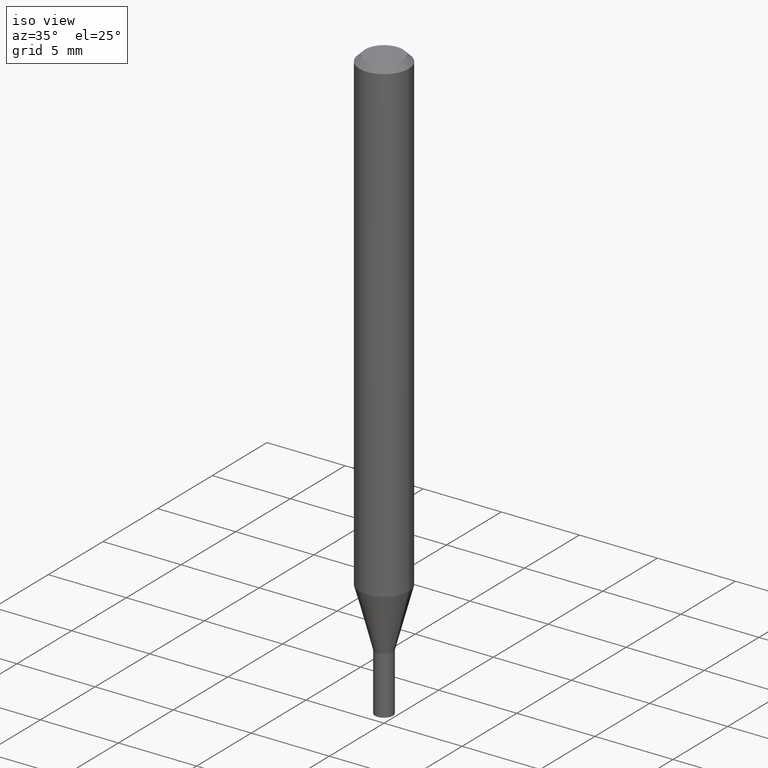
[diagram: clean part render]
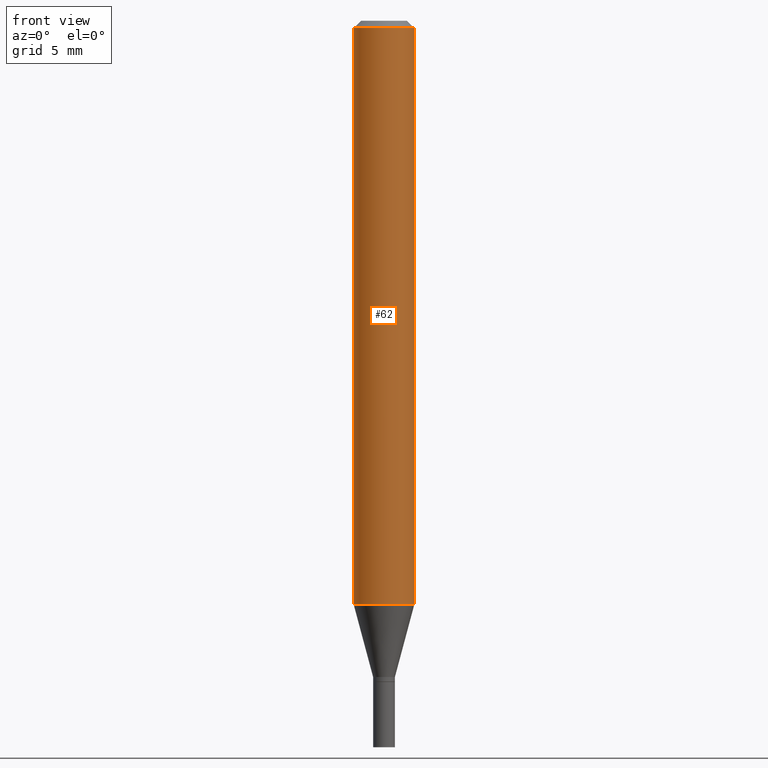
[diagram: tour spotlight — one face highlighted and labeled with its STEP entity id]
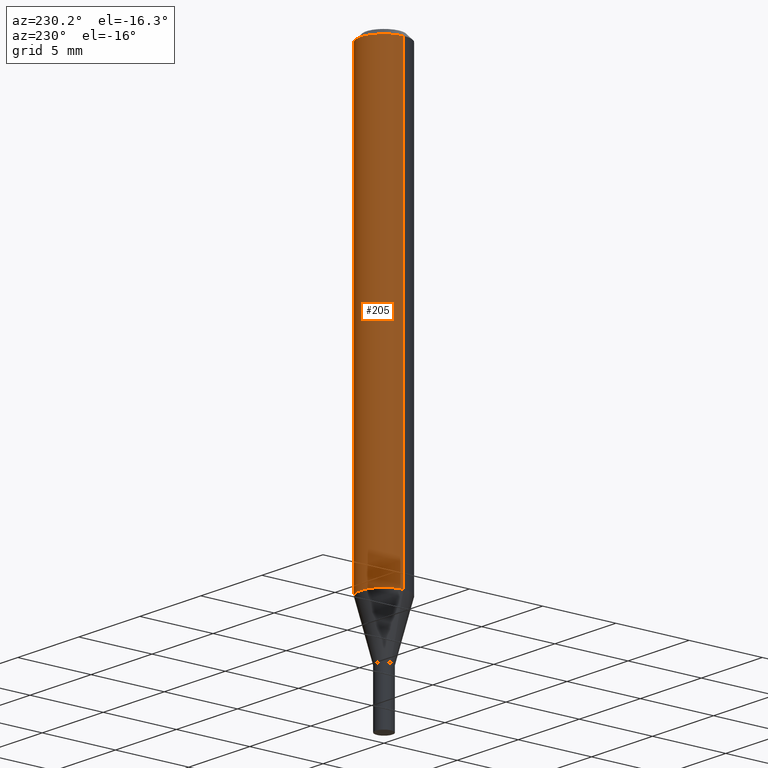
[diagram: tour spotlight — one face highlighted and labeled with its STEP entity id]
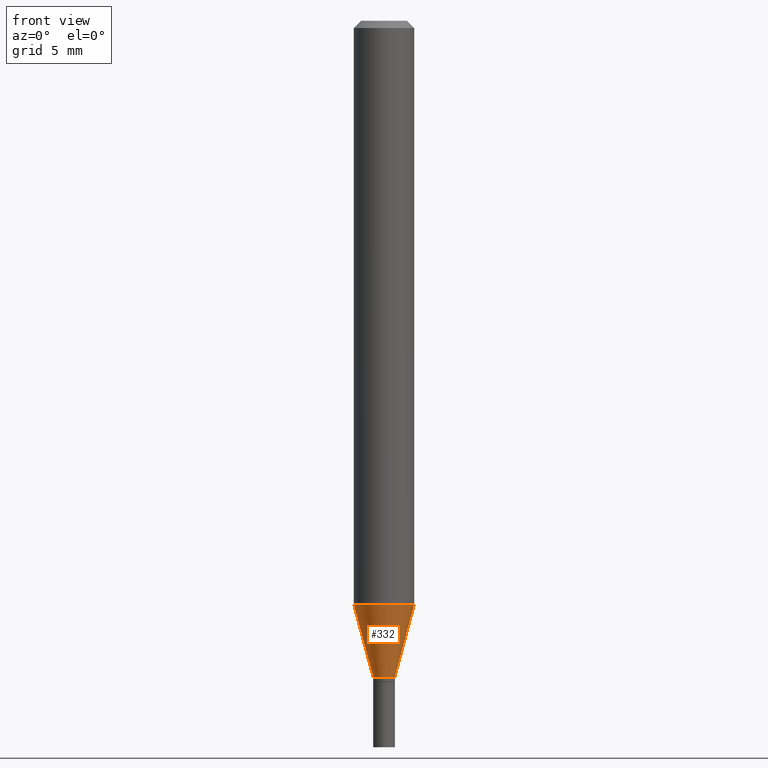
[diagram: tour spotlight — one face highlighted and labeled with its STEP entity id]
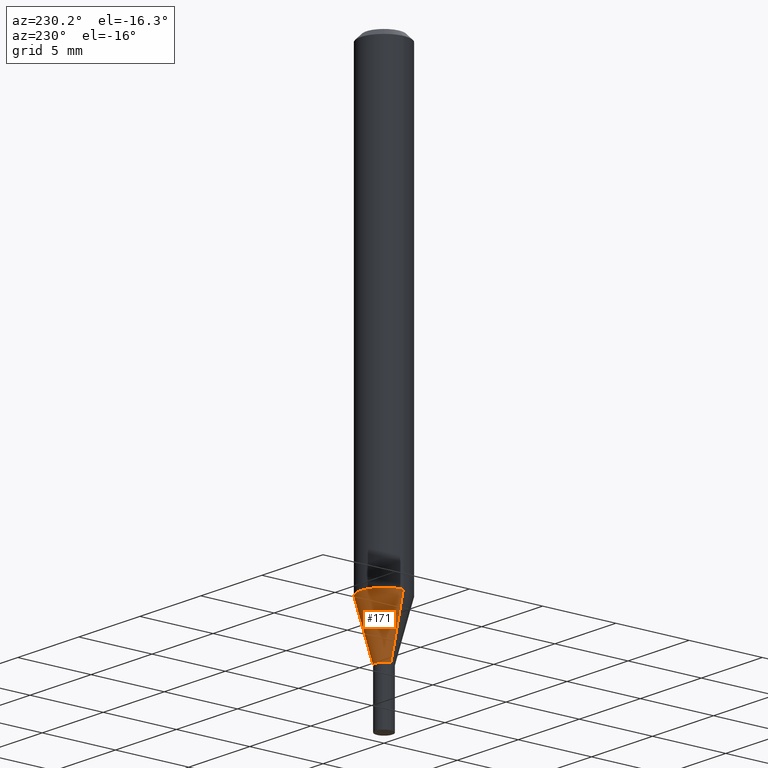
[diagram: tour spotlight — one face highlighted and labeled with its STEP entity id]
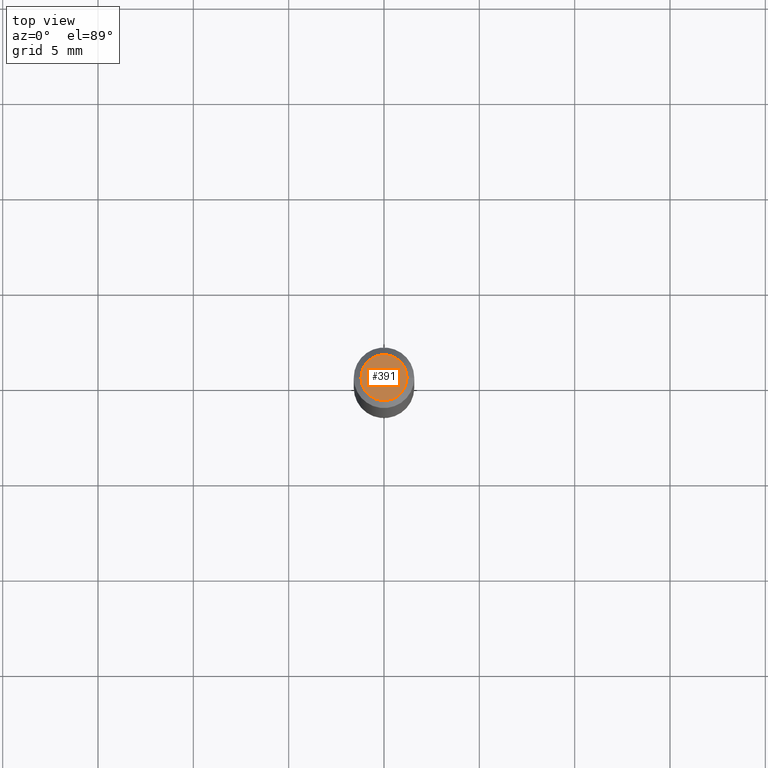
[diagram: tour spotlight — one face highlighted and labeled with its STEP entity id]
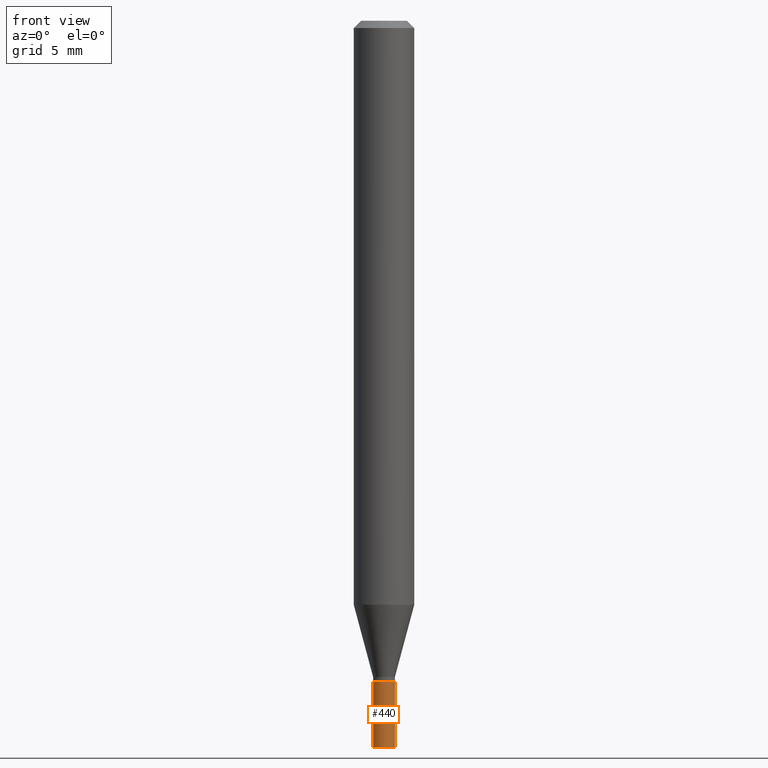
[diagram: tour spotlight — one face highlighted and labeled with its STEP entity id]
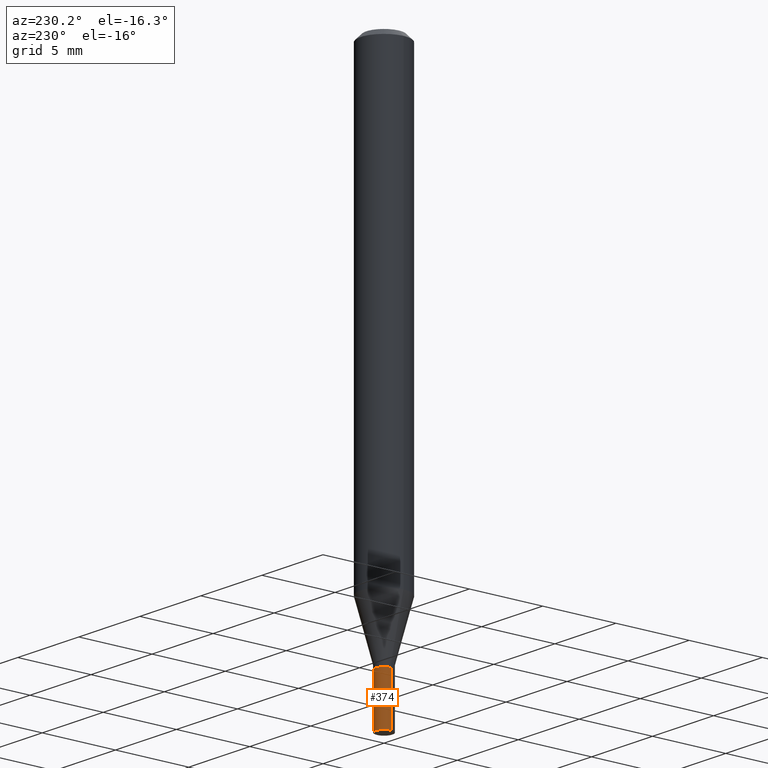
[diagram: tour spotlight — one face highlighted and labeled with its STEP entity id]
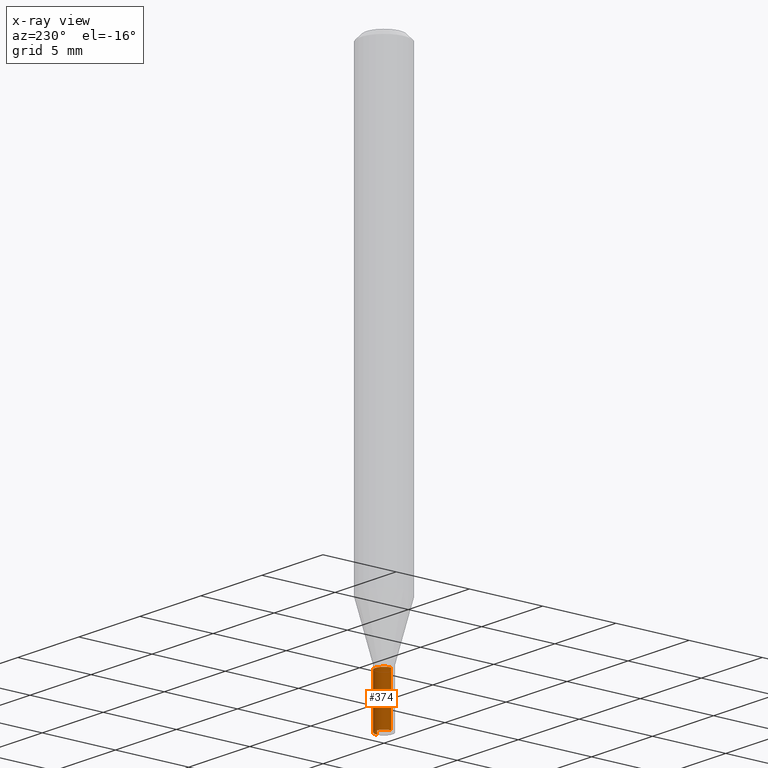
[diagram: x-ray of the same camera — body ghosted, this tour face saturated]
A machine part: a face-by-face anatomy tour. The part has 16 B-rep faces; the first image is the clean iso view, then the 7 largest visible faces are spotlighted one at a time (largest first), each with its STEP entity span.

Face 1 — front view, entity #62. In plain terms, the highlighted cylindrical surface (edge-blend (fillet) strip) has radius 1.5875 mm, axis along (-0, 0, 1).
Definition (entity closure, byte-faithful):
#1 = VERTEX_POINT ( 'NONE', #156 ) ;
#6 = VECTOR ( 'NONE', #94, 39.37007874015748143 ) ;
#20 = ORIENTED_EDGE ( 'NONE', *, *, #79, .T. ) ;
#53 = CIRCLE ( 'NONE', #336, 0.06250000000000000000 ) ;
#55 = CARTESIAN_POINT ( 'NONE',  ( -0.06250000000000001388, -3.765652574272750998E-15, -1.205717967697245152 ) ) ;
#57 = CYLINDRICAL_SURFACE ( 'NONE', #238, 0.06250000000000000000 ) ;
#62 = ADVANCED_FACE ( 'NONE', ( #122 ), #57, .T. ) ;
#68 = VERTEX_POINT ( 'NONE', #55 ) ;
#69 = ORIENTED_EDGE ( 'NONE', *, *, #235, .F. ) ;
#75 = DIRECTION ( 'NONE',  ( -2.445468806185136597E-29, 3.491481338843145583E-15, 1.000000000000000000 ) ) ;
#78 = DIRECTION ( 'NONE',  ( 1.000000000000000000, -6.982962677686266711E-15, 4.876176775795935793E-29 ) ) ;
#79 = EDGE_CURVE ( 'NONE', #108, #318, #225, .T. ) ;
#82 = CARTESIAN_POINT ( 'NONE',  ( 0.000000000000000000, 0.000000000000000000, 0.000000000000000000 ) ) ;
#88 = DIRECTION ( 'NONE',  ( 1.000000000000000000, -6.982962677686270655E-15, 0.000000000000000000 ) ) ;
#94 = DIRECTION ( 'NONE',  ( -2.445468806185136877E-29, 3.491481338843145188E-15, 1.000000000000000000 ) ) ;
#108 = VERTEX_POINT ( 'NONE', #296 ) ;
#114 = EDGE_CURVE ( 'NONE', #68, #108, #53, .T. ) ;
#122 = FACE_OUTER_BOUND ( 'NONE', #362, .T. ) ;
#150 = ORIENTED_EDGE ( 'NONE', *, *, #355, .F. ) ;
#156 = CARTESIAN_POINT ( 'NONE',  ( -0.06250000000000000000, -1.686967792252667731E-15, -0.01499999999999999944 ) ) ;
#163 = DIRECTION ( 'NONE',  ( -2.445468806185136877E-29, 3.491481338843145188E-15, 1.000000000000000000 ) ) ;
#186 = CIRCLE ( 'NONE', #229, 0.06250000000000000000 ) ;
#198 = DIRECTION ( 'NONE',  ( -2.445468806185136597E-29, 3.491481338843145583E-15, 1.000000000000000000 ) ) ;
#225 = LINE ( 'NONE', #367, #288 ) ;
#229 = AXIS2_PLACEMENT_3D ( 'NONE', #414, #198, #423 ) ;
#235 = EDGE_CURVE ( 'NONE', #68, #1, #388, .T. ) ;
#238 = AXIS2_PLACEMENT_3D ( 'NONE', #82, #75, #78 ) ;
#271 = CARTESIAN_POINT ( 'NONE',  ( 0.06250000000000000000, -4.888073874380388472E-16, -0.01499999999999999944 ) ) ;
#285 = ORIENTED_EDGE ( 'NONE', *, *, #114, .T. ) ;
#288 = VECTOR ( 'NONE', #163, 39.37007874015748143 ) ;
#296 = CARTESIAN_POINT ( 'NONE',  ( 0.06250000000000001388, -4.646176951478205284E-15, -1.205717967697245152 ) ) ;
#300 = DIRECTION ( 'NONE',  ( -2.445468806185136597E-29, 3.491481338843145583E-15, 1.000000000000000000 ) ) ;
#318 = VERTEX_POINT ( 'NONE', #271 ) ;
#336 = AXIS2_PLACEMENT_3D ( 'NONE', #419, #300, #88 ) ;
#355 = EDGE_CURVE ( 'NONE', #1, #318, #186, .T. ) ;
#362 = EDGE_LOOP ( 'NONE', ( #69, #285, #20, #150 ) ) ;
#367 = CARTESIAN_POINT ( 'NONE',  ( 0.06250000000000000000, -4.364351673553916694E-16, 3.047610484872459871E-30 ) ) ;
#388 = LINE ( 'NONE', #424, #6 ) ;
#414 = CARTESIAN_POINT ( 'NONE',  ( 3.668203209277705088E-31, -5.237222008264718399E-17, -0.01499999999999999944 ) ) ;
#419 = CARTESIAN_POINT ( 'NONE',  ( 2.948545679060551070E-29, -4.209741784122813615E-15, -1.205717967697245152 ) ) ;
#423 = DIRECTION ( 'NONE',  ( 1.000000000000000000, -6.982962677686266711E-15, 0.000000000000000000 ) ) ;
#424 = CARTESIAN_POINT ( 'NONE',  ( -0.06250000000000000000, 4.440892098500626162E-16, -3.074334431409316114E-30 ) ) ;

Face 2 — auxiliary view, entity #205. In plain terms, the highlighted cylindrical surface (edge-blend (fillet) strip) has radius 1.5875 mm, axis along (-0, 0, 1).
Definition (entity closure, byte-faithful):
#1 = VERTEX_POINT ( 'NONE', #156 ) ;
#6 = VECTOR ( 'NONE', #94, 39.37007874015748143 ) ;
#19 = CARTESIAN_POINT ( 'NONE',  ( 2.948545679060551070E-29, -4.209741784122813615E-15, -1.205717967697245152 ) ) ;
#29 = DIRECTION ( 'NONE',  ( -2.445468806185136597E-29, 3.491481338843145583E-15, 1.000000000000000000 ) ) ;
#34 = AXIS2_PLACEMENT_3D ( 'NONE', #19, #447, #444 ) ;
#55 = CARTESIAN_POINT ( 'NONE',  ( -0.06250000000000001388, -3.765652574272750998E-15, -1.205717967697245152 ) ) ;
#68 = VERTEX_POINT ( 'NONE', #55 ) ;
#74 = EDGE_LOOP ( 'NONE', ( #435, #364, #443, #448 ) ) ;
#79 = EDGE_CURVE ( 'NONE', #108, #318, #225, .T. ) ;
#94 = DIRECTION ( 'NONE',  ( -2.445468806185136877E-29, 3.491481338843145188E-15, 1.000000000000000000 ) ) ;
#96 = CYLINDRICAL_SURFACE ( 'NONE', #178, 0.06250000000000000000 ) ;
#108 = VERTEX_POINT ( 'NONE', #296 ) ;
#156 = CARTESIAN_POINT ( 'NONE',  ( -0.06250000000000000000, -1.686967792252667731E-15, -0.01499999999999999944 ) ) ;
#163 = DIRECTION ( 'NONE',  ( -2.445468806185136877E-29, 3.491481338843145188E-15, 1.000000000000000000 ) ) ;
#178 = AXIS2_PLACEMENT_3D ( 'NONE', #237, #29, #311 ) ;
#205 = ADVANCED_FACE ( 'NONE', ( #350 ), #96, .T. ) ;
#225 = LINE ( 'NONE', #367, #288 ) ;
#235 = EDGE_CURVE ( 'NONE', #68, #1, #388, .T. ) ;
#237 = CARTESIAN_POINT ( 'NONE',  ( 0.000000000000000000, 0.000000000000000000, 0.000000000000000000 ) ) ;
#264 = CARTESIAN_POINT ( 'NONE',  ( 3.668203209277705088E-31, -5.237222008264718399E-17, -0.01499999999999999944 ) ) ;
#271 = CARTESIAN_POINT ( 'NONE',  ( 0.06250000000000000000, -4.888073874380388472E-16, -0.01499999999999999944 ) ) ;
#279 = CIRCLE ( 'NONE', #438, 0.06250000000000000000 ) ;
#288 = VECTOR ( 'NONE', #163, 39.37007874015748143 ) ;
#296 = CARTESIAN_POINT ( 'NONE',  ( 0.06250000000000001388, -4.646176951478205284E-15, -1.205717967697245152 ) ) ;
#311 = DIRECTION ( 'NONE',  ( 1.000000000000000000, -6.982962677686266711E-15, 4.876176775795935793E-29 ) ) ;
#318 = VERTEX_POINT ( 'NONE', #271 ) ;
#322 = EDGE_CURVE ( 'NONE', #108, #68, #427, .T. ) ;
#345 = DIRECTION ( 'NONE',  ( -2.445468806185136597E-29, 3.491481338843145583E-15, 1.000000000000000000 ) ) ;
#349 = EDGE_CURVE ( 'NONE', #318, #1, #279, .T. ) ;
#350 = FACE_OUTER_BOUND ( 'NONE', #74, .T. ) ;
#364 = ORIENTED_EDGE ( 'NONE', *, *, #235, .T. ) ;
#367 = CARTESIAN_POINT ( 'NONE',  ( 0.06250000000000000000, -4.364351673553916694E-16, 3.047610484872459871E-30 ) ) ;
#388 = LINE ( 'NONE', #424, #6 ) ;
#421 = DIRECTION ( 'NONE',  ( 1.000000000000000000, -6.982962677686266711E-15, 0.000000000000000000 ) ) ;
#424 = CARTESIAN_POINT ( 'NONE',  ( -0.06250000000000000000, 4.440892098500626162E-16, -3.074334431409316114E-30 ) ) ;
#427 = CIRCLE ( 'NONE', #34, 0.06250000000000000000 ) ;
#435 = ORIENTED_EDGE ( 'NONE', *, *, #322, .T. ) ;
#438 = AXIS2_PLACEMENT_3D ( 'NONE', #264, #345, #421 ) ;
#443 = ORIENTED_EDGE ( 'NONE', *, *, #349, .F. ) ;
#444 = DIRECTION ( 'NONE',  ( 1.000000000000000000, -6.982962677686270655E-15, 0.000000000000000000 ) ) ;
#447 = DIRECTION ( 'NONE',  ( -2.445468806185136597E-29, 3.491481338843145583E-15, 1.000000000000000000 ) ) ;
#448 = ORIENTED_EDGE ( 'NONE', *, *, #79, .F. ) ;

Face 3 — front view, entity #332. In plain terms, the highlighted conical surface has half-angle 15 deg.
Definition (entity closure, byte-faithful):
#7 = ORIENTED_EDGE ( 'NONE', *, *, #466, .T. ) ;
#14 = VECTOR ( 'NONE', #192, 39.37007874015747433 ) ;
#53 = CIRCLE ( 'NONE', #336, 0.06250000000000000000 ) ;
#55 = CARTESIAN_POINT ( 'NONE',  ( -0.06250000000000001388, -3.765652574272750998E-15, -1.205717967697245152 ) ) ;
#68 = VERTEX_POINT ( 'NONE', #55 ) ;
#73 = DIRECTION ( 'NONE',  ( 0.2588190451025213501, 1.565188264969621968E-15, 0.9659258262890682012 ) ) ;
#86 = DIRECTION ( 'NONE',  ( -2.445468806185136597E-29, 3.491481338843145583E-15, 1.000000000000000000 ) ) ;
#87 = CIRCLE ( 'NONE', #418, 0.02249999999999991937 ) ;
#88 = DIRECTION ( 'NONE',  ( 1.000000000000000000, -6.982962677686270655E-15, 0.000000000000000000 ) ) ;
#106 = EDGE_LOOP ( 'NONE', ( #152, #433, #7, #306 ) ) ;
#108 = VERTEX_POINT ( 'NONE', #296 ) ;
#114 = EDGE_CURVE ( 'NONE', #68, #108, #53, .T. ) ;
#121 = FACE_OUTER_BOUND ( 'NONE', #106, .T. ) ;
#131 = CARTESIAN_POINT ( 'NONE',  ( 3.313610232380860851E-29, -4.730957214132463209E-15, -1.355000000000000204 ) ) ;
#152 = ORIENTED_EDGE ( 'NONE', *, *, #429, .F. ) ;
#162 = CARTESIAN_POINT ( 'NONE',  ( -0.02249999999999991937, -4.168368836429595565E-15, -1.355000000000000204 ) ) ;
#192 = DIRECTION ( 'NONE',  ( -0.2588190451025213501, 5.211531920934551042E-15, 0.9659258262890682012 ) ) ;
#199 = LINE ( 'NONE', #221, #251 ) ;
#213 = AXIS2_PLACEMENT_3D ( 'NONE', #131, #383, #452 ) ;
#219 = CARTESIAN_POINT ( 'NONE',  ( 0.02249999999999991937, -4.888073874380403263E-15, -1.355000000000000204 ) ) ;
#221 = CARTESIAN_POINT ( 'NONE',  ( 0.02249999999999991937, -4.888073874380403263E-15, -1.355000000000000204 ) ) ;
#224 = LINE ( 'NONE', #371, #14 ) ;
#232 = CARTESIAN_POINT ( 'NONE',  ( 3.313610232380860851E-29, -4.730957214132463209E-15, -1.355000000000000204 ) ) ;
#251 = VECTOR ( 'NONE', #73, 39.37007874015747433 ) ;
#269 = CONICAL_SURFACE ( 'NONE', #213, 0.02249999999999991937, 0.2617993877991500740 ) ;
#296 = CARTESIAN_POINT ( 'NONE',  ( 0.06250000000000001388, -4.646176951478205284E-15, -1.205717967697245152 ) ) ;
#300 = DIRECTION ( 'NONE',  ( -2.445468806185136597E-29, 3.491481338843145583E-15, 1.000000000000000000 ) ) ;
#306 = ORIENTED_EDGE ( 'NONE', *, *, #114, .F. ) ;
#332 = ADVANCED_FACE ( 'NONE', ( #121 ), #269, .T. ) ;
#336 = AXIS2_PLACEMENT_3D ( 'NONE', #419, #300, #88 ) ;
#356 = VERTEX_POINT ( 'NONE', #162 ) ;
#371 = CARTESIAN_POINT ( 'NONE',  ( -0.02249999999999991937, -4.571085098586440920E-15, -1.355000000000000204 ) ) ;
#379 = DIRECTION ( 'NONE',  ( 1.000000000000000000, -6.982962677686249356E-15, 0.000000000000000000 ) ) ;
#383 = DIRECTION ( 'NONE',  ( -2.445468806185136597E-29, 3.491481338843145583E-15, 1.000000000000000000 ) ) ;
#387 = EDGE_CURVE ( 'NONE', #356, #439, #87, .T. ) ;
#418 = AXIS2_PLACEMENT_3D ( 'NONE', #232, #86, #379 ) ;
#419 = CARTESIAN_POINT ( 'NONE',  ( 2.948545679060551070E-29, -4.209741784122813615E-15, -1.205717967697245152 ) ) ;
#429 = EDGE_CURVE ( 'NONE', #356, #68, #224, .T. ) ;
#433 = ORIENTED_EDGE ( 'NONE', *, *, #387, .T. ) ;
#439 = VERTEX_POINT ( 'NONE', #219 ) ;
#452 = DIRECTION ( 'NONE',  ( 1.000000000000000000, -6.982962677686249356E-15, 0.000000000000000000 ) ) ;
#466 = EDGE_CURVE ( 'NONE', #439, #108, #199, .T. ) ;

Face 4 — auxiliary view, entity #171. In plain terms, the highlighted conical surface has half-angle 15 deg.
Definition (entity closure, byte-faithful):
#14 = VECTOR ( 'NONE', #192, 39.37007874015747433 ) ;
#19 = CARTESIAN_POINT ( 'NONE',  ( 2.948545679060551070E-29, -4.209741784122813615E-15, -1.205717967697245152 ) ) ;
#27 = DIRECTION ( 'NONE',  ( 1.000000000000000000, -6.982962677686249356E-15, 0.000000000000000000 ) ) ;
#30 = DIRECTION ( 'NONE',  ( -2.445468806185136597E-29, 3.491481338843145583E-15, 1.000000000000000000 ) ) ;
#34 = AXIS2_PLACEMENT_3D ( 'NONE', #19, #447, #444 ) ;
#47 = ORIENTED_EDGE ( 'NONE', *, *, #466, .F. ) ;
#55 = CARTESIAN_POINT ( 'NONE',  ( -0.06250000000000001388, -3.765652574272750998E-15, -1.205717967697245152 ) ) ;
#68 = VERTEX_POINT ( 'NONE', #55 ) ;
#73 = DIRECTION ( 'NONE',  ( 0.2588190451025213501, 1.565188264969621968E-15, 0.9659258262890682012 ) ) ;
#99 = CARTESIAN_POINT ( 'NONE',  ( 3.313610232380860851E-29, -4.730957214132463209E-15, -1.355000000000000204 ) ) ;
#108 = VERTEX_POINT ( 'NONE', #296 ) ;
#118 = EDGE_CURVE ( 'NONE', #439, #356, #268, .T. ) ;
#139 = CARTESIAN_POINT ( 'NONE',  ( 3.313610232380860851E-29, -4.730957214132463209E-15, -1.355000000000000204 ) ) ;
#162 = CARTESIAN_POINT ( 'NONE',  ( -0.02249999999999991937, -4.168368836429595565E-15, -1.355000000000000204 ) ) ;
#171 = ADVANCED_FACE ( 'NONE', ( #428 ), #460, .T. ) ;
#192 = DIRECTION ( 'NONE',  ( -0.2588190451025213501, 5.211531920934551042E-15, 0.9659258262890682012 ) ) ;
#199 = LINE ( 'NONE', #221, #251 ) ;
#204 = DIRECTION ( 'NONE',  ( 1.000000000000000000, -6.982962677686249356E-15, 0.000000000000000000 ) ) ;
#207 = AXIS2_PLACEMENT_3D ( 'NONE', #99, #30, #27 ) ;
#214 = ORIENTED_EDGE ( 'NONE', *, *, #118, .T. ) ;
#219 = CARTESIAN_POINT ( 'NONE',  ( 0.02249999999999991937, -4.888073874380403263E-15, -1.355000000000000204 ) ) ;
#221 = CARTESIAN_POINT ( 'NONE',  ( 0.02249999999999991937, -4.888073874380403263E-15, -1.355000000000000204 ) ) ;
#224 = LINE ( 'NONE', #371, #14 ) ;
#250 = AXIS2_PLACEMENT_3D ( 'NONE', #139, #384, #204 ) ;
#251 = VECTOR ( 'NONE', #73, 39.37007874015747433 ) ;
#268 = CIRCLE ( 'NONE', #207, 0.02249999999999991937 ) ;
#287 = ORIENTED_EDGE ( 'NONE', *, *, #429, .T. ) ;
#296 = CARTESIAN_POINT ( 'NONE',  ( 0.06250000000000001388, -4.646176951478205284E-15, -1.205717967697245152 ) ) ;
#322 = EDGE_CURVE ( 'NONE', #108, #68, #427, .T. ) ;
#356 = VERTEX_POINT ( 'NONE', #162 ) ;
#371 = CARTESIAN_POINT ( 'NONE',  ( -0.02249999999999991937, -4.571085098586440920E-15, -1.355000000000000204 ) ) ;
#384 = DIRECTION ( 'NONE',  ( -2.445468806185136597E-29, 3.491481338843145583E-15, 1.000000000000000000 ) ) ;
#394 = EDGE_LOOP ( 'NONE', ( #214, #287, #398, #47 ) ) ;
#398 = ORIENTED_EDGE ( 'NONE', *, *, #322, .F. ) ;
#427 = CIRCLE ( 'NONE', #34, 0.06250000000000000000 ) ;
#428 = FACE_OUTER_BOUND ( 'NONE', #394, .T. ) ;
#429 = EDGE_CURVE ( 'NONE', #356, #68, #224, .T. ) ;
#439 = VERTEX_POINT ( 'NONE', #219 ) ;
#444 = DIRECTION ( 'NONE',  ( 1.000000000000000000, -6.982962677686270655E-15, 0.000000000000000000 ) ) ;
#447 = DIRECTION ( 'NONE',  ( -2.445468806185136597E-29, 3.491481338843145583E-15, 1.000000000000000000 ) ) ;
#460 = CONICAL_SURFACE ( 'NONE', #250, 0.02249999999999991937, 0.2617993877991500740 ) ;
#466 = EDGE_CURVE ( 'NONE', #439, #108, #199, .T. ) ;

Face 5 — top view, entity #391. In plain terms, the highlighted planar face has unit normal (0, -0, -1).
Definition (entity closure, byte-faithful):
#22 = DIRECTION ( 'NONE',  ( -2.445468806185136597E-29, 3.491481338843145583E-15, 1.000000000000000000 ) ) ;
#32 = ORIENTED_EDGE ( 'NONE', *, *, #263, .T. ) ;
#40 = VERTEX_POINT ( 'NONE', #381 ) ;
#56 = PLANE ( 'NONE',  #67 ) ;
#67 = AXIS2_PLACEMENT_3D ( 'NONE', #302, #164, #450 ) ;
#164 = DIRECTION ( 'NONE',  ( 2.438088387897960049E-29, -3.491481338843145188E-15, -1.000000000000000000 ) ) ;
#200 = CARTESIAN_POINT ( 'NONE',  ( -0.04749999999999999362, 3.578768372314215436E-16, 2.340532281875096216E-16 ) ) ;
#206 = DIRECTION ( 'NONE',  ( 1.000000000000000000, -6.982962677686267499E-15, 4.852736867747366768E-29 ) ) ;
#212 = VERTEX_POINT ( 'NONE', #200 ) ;
#243 = DIRECTION ( 'NONE',  ( -2.445468806185136597E-29, 3.491481338843145583E-15, 1.000000000000000000 ) ) ;
#255 = ORIENTED_EDGE ( 'NONE', *, *, #315, .T. ) ;
#263 = EDGE_CURVE ( 'NONE', #40, #212, #354, .T. ) ;
#280 = CARTESIAN_POINT ( 'NONE',  ( -5.723698685194923234E-45, 8.171924785126947293E-31, 2.340532281875119882E-16 ) ) ;
#289 = AXIS2_PLACEMENT_3D ( 'NONE', #280, #243, #206 ) ;
#302 = CARTESIAN_POINT ( 'NONE',  ( 3.316907271900976096E-16, 0.04749999999999999362, -4.881874950129340235E-17 ) ) ;
#305 = DIRECTION ( 'NONE',  ( 1.000000000000000000, -6.982962677686267499E-15, 4.852736867747366768E-29 ) ) ;
#315 = EDGE_CURVE ( 'NONE', #212, #40, #377, .T. ) ;
#319 = EDGE_LOOP ( 'NONE', ( #255, #32 ) ) ;
#335 = CARTESIAN_POINT ( 'NONE',  ( -5.723698685194923234E-45, 8.171924785126947293E-31, 2.340532281875119882E-16 ) ) ;
#354 = CIRCLE ( 'NONE', #289, 0.04749999999999999362 ) ;
#368 = FACE_OUTER_BOUND ( 'NONE', #319, .T. ) ;
#377 = CIRCLE ( 'NONE', #407, 0.04749999999999999362 ) ;
#381 = CARTESIAN_POINT ( 'NONE',  ( 0.04749999999999999362, -4.035134999187574186E-16, 2.340532281875146013E-16 ) ) ;
#391 = ADVANCED_FACE ( 'NONE', ( #368 ), #56, .F. ) ;
#407 = AXIS2_PLACEMENT_3D ( 'NONE', #335, #22, #305 ) ;
#450 = DIRECTION ( 'NONE',  ( -1.000000000000000000, 6.982962677686265922E-15, -4.876176775795935793E-29 ) ) ;

Face 6 — front view, entity #440. In plain terms, the highlighted cylindrical surface (edge-blend (fillet) strip) has radius 0.5715 mm, axis along (-0, 0, 1).
Definition (entity closure, byte-faithful):
#18 = CARTESIAN_POINT ( 'NONE',  ( 0.02249999999999999917, -4.922988687768834913E-15, -1.364999999999999991 ) ) ;
#35 = ORIENTED_EDGE ( 'NONE', *, *, #175, .T. ) ;
#72 = VERTEX_POINT ( 'NONE', #18 ) ;
#91 = CARTESIAN_POINT ( 'NONE',  ( 3.338064920442711836E-29, -4.765872027520893280E-15, -1.364999999999999991 ) ) ;
#93 = CARTESIAN_POINT ( 'NONE',  ( 0.000000000000000000, 0.000000000000000000, 0.000000000000000000 ) ) ;
#98 = FACE_OUTER_BOUND ( 'NONE', #177, .T. ) ;
#100 = LINE ( 'NONE', #462, #185 ) ;
#112 = VERTEX_POINT ( 'NONE', #159 ) ;
#119 = ORIENTED_EDGE ( 'NONE', *, *, #399, .T. ) ;
#125 = CARTESIAN_POINT ( 'NONE',  ( -0.02249999999999999917, -4.841674902346784228E-15, -1.500000000000000222 ) ) ;
#127 = AXIS2_PLACEMENT_3D ( 'NONE', #385, #135, #317 ) ;
#132 = DIRECTION ( 'NONE',  ( -2.445468806185136597E-29, 3.491481338843145583E-15, 1.000000000000000000 ) ) ;
#135 = DIRECTION ( 'NONE',  ( -2.445468806185136597E-29, 3.491481338843145583E-15, 1.000000000000000000 ) ) ;
#159 = CARTESIAN_POINT ( 'NONE',  ( -0.02249999999999999917, -4.841674902346784228E-15, -1.364999999999999991 ) ) ;
#175 = EDGE_CURVE ( 'NONE', #397, #216, #375, .T. ) ;
#177 = EDGE_LOOP ( 'NONE', ( #454, #35, #119, #344 ) ) ;
#185 = VECTOR ( 'NONE', #390, 39.37007874015748143 ) ;
#191 = DIRECTION ( 'NONE',  ( -2.445468806185136877E-29, 3.491481338843145188E-15, 1.000000000000000000 ) ) ;
#193 = EDGE_CURVE ( 'NONE', #397, #112, #100, .T. ) ;
#208 = AXIS2_PLACEMENT_3D ( 'NONE', #91, #132, #346 ) ;
#216 = VERTEX_POINT ( 'NONE', #313 ) ;
#217 = EDGE_CURVE ( 'NONE', #112, #72, #282, .T. ) ;
#244 = CYLINDRICAL_SURFACE ( 'NONE', #365, 0.02249999999999999917 ) ;
#266 = LINE ( 'NONE', #333, #316 ) ;
#273 = DIRECTION ( 'NONE',  ( 1.000000000000000000, -6.982962677686266711E-15, 4.876176775795935793E-29 ) ) ;
#282 = CIRCLE ( 'NONE', #208, 0.02249999999999999917 ) ;
#313 = CARTESIAN_POINT ( 'NONE',  ( 0.02249999999999999917, -5.394338668512659809E-15, -1.500000000000000222 ) ) ;
#316 = VECTOR ( 'NONE', #191, 39.37007874015748143 ) ;
#317 = DIRECTION ( 'NONE',  ( 1.000000000000000000, -6.982962677686269077E-15, 0.000000000000000000 ) ) ;
#333 = CARTESIAN_POINT ( 'NONE',  ( 0.02249999999999999917, -1.571166602479409911E-16, 1.097139774554085483E-30 ) ) ;
#344 = ORIENTED_EDGE ( 'NONE', *, *, #217, .F. ) ;
#346 = DIRECTION ( 'NONE',  ( 1.000000000000000000, -6.982962677686269077E-15, 0.000000000000000000 ) ) ;
#365 = AXIS2_PLACEMENT_3D ( 'NONE', #93, #389, #273 ) ;
#375 = CIRCLE ( 'NONE', #127, 0.02249999999999999917 ) ;
#385 = CARTESIAN_POINT ( 'NONE',  ( 3.668203209277704895E-29, -5.237222008264718177E-15, -1.500000000000000222 ) ) ;
#389 = DIRECTION ( 'NONE',  ( -2.445468806185136597E-29, 3.491481338843145583E-15, 1.000000000000000000 ) ) ;
#390 = DIRECTION ( 'NONE',  ( -2.445468806185136877E-29, 3.491481338843145188E-15, 1.000000000000000000 ) ) ;
#397 = VERTEX_POINT ( 'NONE', #125 ) ;
#399 = EDGE_CURVE ( 'NONE', #216, #72, #266, .T. ) ;
#440 = ADVANCED_FACE ( 'NONE', ( #98 ), #244, .T. ) ;
#454 = ORIENTED_EDGE ( 'NONE', *, *, #193, .F. ) ;
#462 = CARTESIAN_POINT ( 'NONE',  ( -0.02249999999999999917, 1.598721155460225359E-16, -1.106760395307353780E-30 ) ) ;

Face 7 — auxiliary view, entity #374. An x-ray twin of the same camera follows (body ghosted, this face saturated) — the face is partly hidden behind the body. In plain terms, the highlighted cylindrical surface (edge-blend (fillet) strip) has radius 0.5715 mm, axis along (-0, 0, 1).
Definition (entity closure, byte-faithful):
#4 = ORIENTED_EDGE ( 'NONE', *, *, #193, .T. ) ;
#17 = DIRECTION ( 'NONE',  ( 1.000000000000000000, -6.982962677686266711E-15, 4.876176775795935793E-29 ) ) ;
#18 = CARTESIAN_POINT ( 'NONE',  ( 0.02249999999999999917, -4.922988687768834913E-15, -1.364999999999999991 ) ) ;
#26 = CARTESIAN_POINT ( 'NONE',  ( 3.338064920442711836E-29, -4.765872027520893280E-15, -1.364999999999999991 ) ) ;
#72 = VERTEX_POINT ( 'NONE', #18 ) ;
#84 = DIRECTION ( 'NONE',  ( 1.000000000000000000, -6.982962677686269077E-15, 0.000000000000000000 ) ) ;
#85 = ORIENTED_EDGE ( 'NONE', *, *, #399, .F. ) ;
#89 = CARTESIAN_POINT ( 'NONE',  ( 3.668203209277704895E-29, -5.237222008264718177E-15, -1.500000000000000222 ) ) ;
#92 = CARTESIAN_POINT ( 'NONE',  ( 0.000000000000000000, 0.000000000000000000, 0.000000000000000000 ) ) ;
#100 = LINE ( 'NONE', #462, #185 ) ;
#112 = VERTEX_POINT ( 'NONE', #159 ) ;
#124 = EDGE_CURVE ( 'NONE', #72, #112, #353, .T. ) ;
#125 = CARTESIAN_POINT ( 'NONE',  ( -0.02249999999999999917, -4.841674902346784228E-15, -1.500000000000000222 ) ) ;
#148 = EDGE_LOOP ( 'NONE', ( #323, #4, #329, #85 ) ) ;
#159 = CARTESIAN_POINT ( 'NONE',  ( -0.02249999999999999917, -4.841674902346784228E-15, -1.364999999999999991 ) ) ;
#185 = VECTOR ( 'NONE', #390, 39.37007874015748143 ) ;
#191 = DIRECTION ( 'NONE',  ( -2.445468806185136877E-29, 3.491481338843145188E-15, 1.000000000000000000 ) ) ;
#193 = EDGE_CURVE ( 'NONE', #397, #112, #100, .T. ) ;
#195 = DIRECTION ( 'NONE',  ( -2.445468806185136597E-29, 3.491481338843145583E-15, 1.000000000000000000 ) ) ;
#216 = VERTEX_POINT ( 'NONE', #313 ) ;
#226 = FACE_OUTER_BOUND ( 'NONE', #148, .T. ) ;
#234 = DIRECTION ( 'NONE',  ( -2.445468806185136597E-29, 3.491481338843145583E-15, 1.000000000000000000 ) ) ;
#266 = LINE ( 'NONE', #333, #316 ) ;
#275 = DIRECTION ( 'NONE',  ( -2.445468806185136597E-29, 3.491481338843145583E-15, 1.000000000000000000 ) ) ;
#281 = DIRECTION ( 'NONE',  ( 1.000000000000000000, -6.982962677686269077E-15, 0.000000000000000000 ) ) ;
#313 = CARTESIAN_POINT ( 'NONE',  ( 0.02249999999999999917, -5.394338668512659809E-15, -1.500000000000000222 ) ) ;
#316 = VECTOR ( 'NONE', #191, 39.37007874015748143 ) ;
#323 = ORIENTED_EDGE ( 'NONE', *, *, #358, .T. ) ;
#329 = ORIENTED_EDGE ( 'NONE', *, *, #124, .F. ) ;
#333 = CARTESIAN_POINT ( 'NONE',  ( 0.02249999999999999917, -1.571166602479409911E-16, 1.097139774554085483E-30 ) ) ;
#338 = CIRCLE ( 'NONE', #464, 0.02249999999999999917 ) ;
#353 = CIRCLE ( 'NONE', #400, 0.02249999999999999917 ) ;
#358 = EDGE_CURVE ( 'NONE', #216, #397, #338, .T. ) ;
#373 = CYLINDRICAL_SURFACE ( 'NONE', #420, 0.02249999999999999917 ) ;
#374 = ADVANCED_FACE ( 'NONE', ( #226 ), #373, .T. ) ;
#390 = DIRECTION ( 'NONE',  ( -2.445468806185136877E-29, 3.491481338843145188E-15, 1.000000000000000000 ) ) ;
#397 = VERTEX_POINT ( 'NONE', #125 ) ;
#399 = EDGE_CURVE ( 'NONE', #216, #72, #266, .T. ) ;
#400 = AXIS2_PLACEMENT_3D ( 'NONE', #26, #234, #281 ) ;
#420 = AXIS2_PLACEMENT_3D ( 'NONE', #92, #195, #17 ) ;
#462 = CARTESIAN_POINT ( 'NONE',  ( -0.02249999999999999917, 1.598721155460225359E-16, -1.106760395307353780E-30 ) ) ;
#464 = AXIS2_PLACEMENT_3D ( 'NONE', #89, #275, #84 ) ;